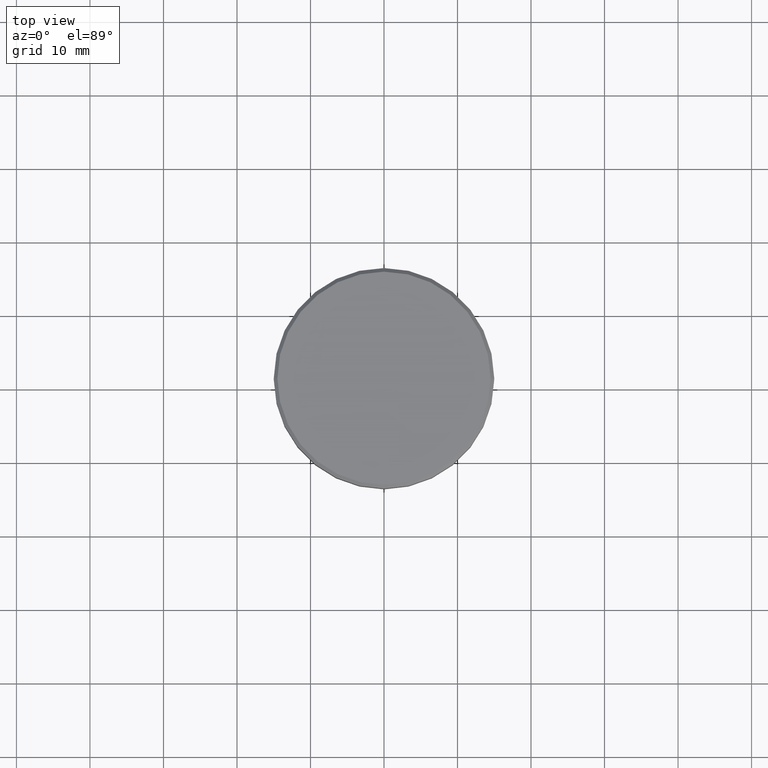
[diagram: clean part render]
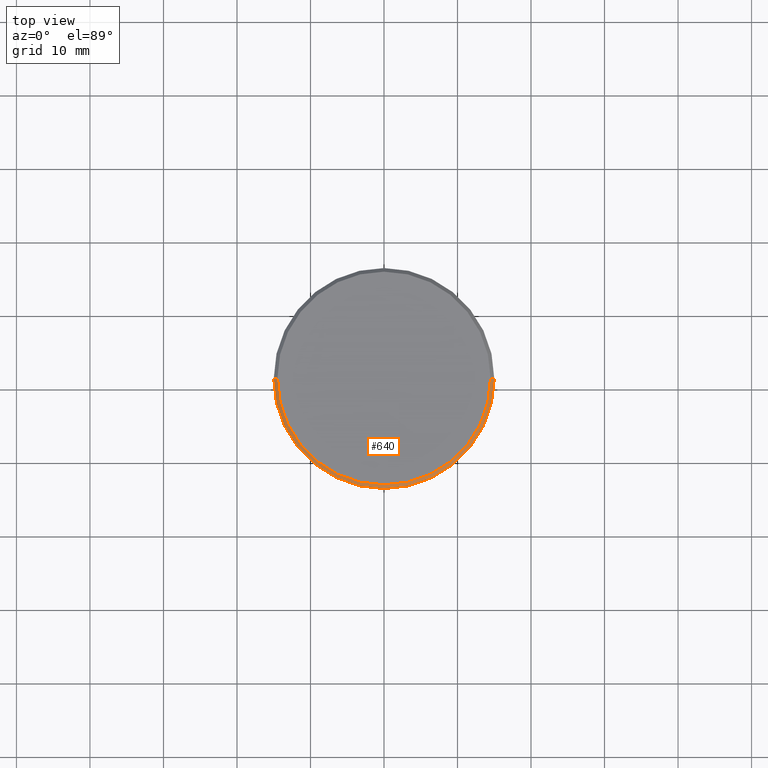
[diagram: same view with one face highlighted and labeled with its STEP entity id]
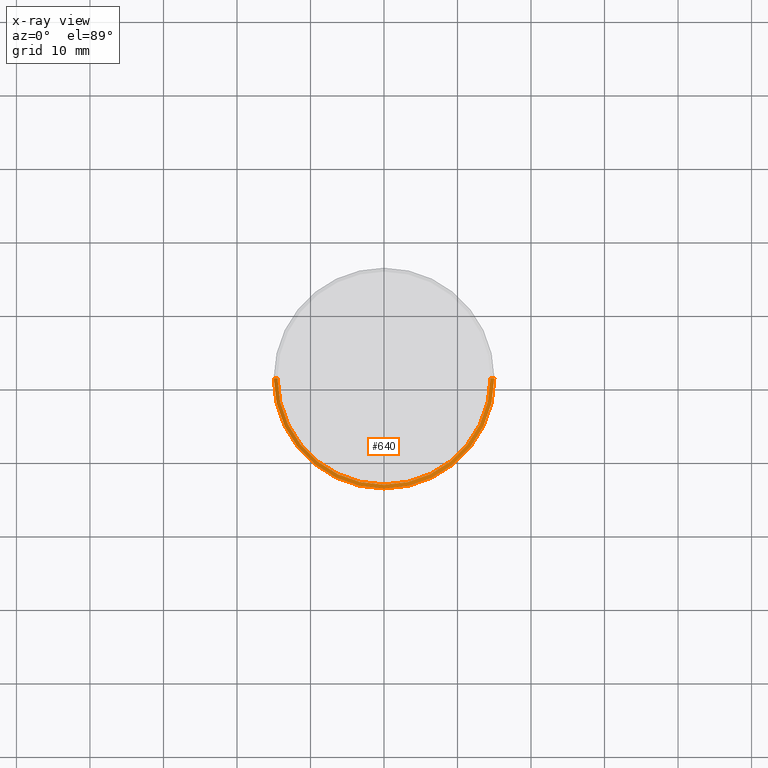
[diagram: x-ray of the same camera — body ghosted, the highlighted face saturated]
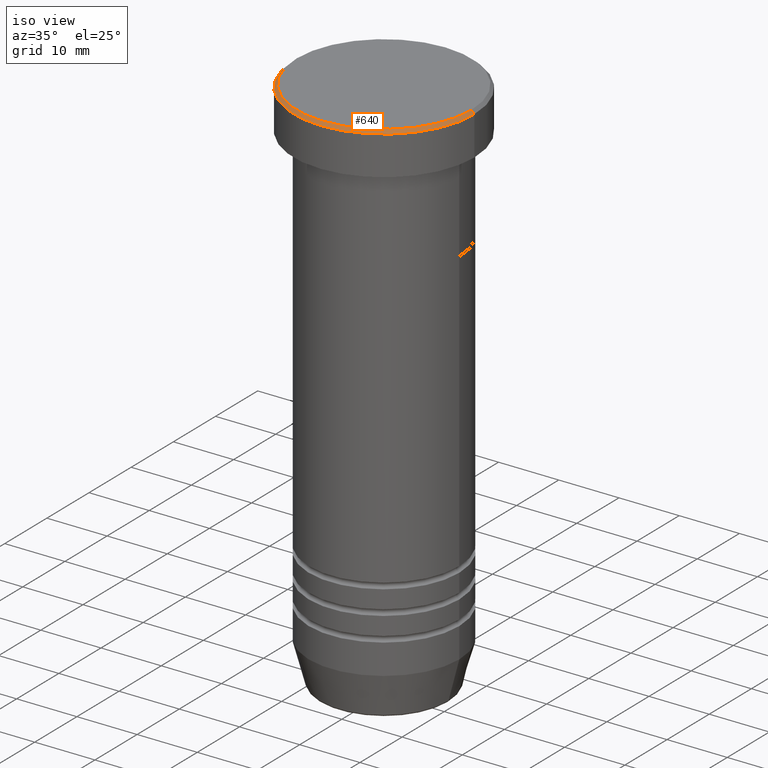
[diagram: same view with one face highlighted and labeled with its STEP entity id]
A machine part, top view. The second image highlights one B-rep face of the part: STEP entity #640.
The next image is the same camera in x-ray: the body ghosted, the highlighted face saturated — about 0% of this face is hidden behind the body in this view.
A second angle (iso view) of the same face is appended — the face is thin or edge-on in the first view.
In plain terms, the highlighted conical surface has half-angle 45 deg.
Its self-contained STEP definition (entity closure, byte-faithful):
#60 = LINE ( 'NONE', #958, #481 ) ;
#68 = CIRCLE ( 'NONE', #123, 15.00000000000000000 ) ;
#69 = VECTOR ( 'NONE', #759, 1000.000000000000000 ) ;
#71 = ORIENTED_EDGE ( 'NONE', *, *, #805, .F. ) ;
#95 = CARTESIAN_POINT ( 'NONE',  ( 14.50000000000000355, 1.806354028742346196E-15, 0.000000000000000000 ) ) ;
#123 = AXIS2_PLACEMENT_3D ( 'NONE', #418, #515, #431 ) ;
#164 = VERTEX_POINT ( 'NONE', #637 ) ;
#245 = ORIENTED_EDGE ( 'NONE', *, *, #791, .F. ) ;
#258 = CARTESIAN_POINT ( 'NONE',  ( -15.00000000000000000, 1.836970198721029589E-15, -0.4999999999999970024 ) ) ;
#272 = ORIENTED_EDGE ( 'NONE', *, *, #812, .T. ) ;
#288 = CONICAL_SURFACE ( 'NONE', #888, 14.50000000000000355, 0.7853981633974466137 ) ;
#334 = CARTESIAN_POINT ( 'NONE',  ( 0.000000000000000000, 0.000000000000000000, 0.000000000000000000 ) ) ;
#376 = EDGE_CURVE ( 'NONE', #607, #663, #512, .T. ) ;
#418 = CARTESIAN_POINT ( 'NONE',  ( 0.000000000000000000, 0.000000000000000000, -0.4999999999999970024 ) ) ;
#431 = DIRECTION ( 'NONE',  ( 1.000000000000000000, 0.000000000000000000, 0.000000000000000000 ) ) ;
#434 = ORIENTED_EDGE ( 'NONE', *, *, #376, .F. ) ;
#436 = LINE ( 'NONE', #904, #69 ) ;
#437 = DIRECTION ( 'NONE',  ( 0.000000000000000000, 0.000000000000000000, -1.000000000000000000 ) ) ;
#446 = EDGE_LOOP ( 'NONE', ( #245, #434, #272, #71 ) ) ;
#450 = DIRECTION ( 'NONE',  ( 1.000000000000000000, 0.000000000000000000, 0.000000000000000000 ) ) ;
#454 = CARTESIAN_POINT ( 'NONE',  ( 0.000000000000000000, 0.000000000000000000, 0.000000000000000000 ) ) ;
#481 = VECTOR ( 'NONE', #898, 1000.000000000000000 ) ;
#512 = CIRCLE ( 'NONE', #670, 14.50000000000000355 ) ;
#515 = DIRECTION ( 'NONE',  ( 0.000000000000000000, 0.000000000000000000, -1.000000000000000000 ) ) ;
#530 = DIRECTION ( 'NONE',  ( -0.000000000000000000, -0.000000000000000000, 1.000000000000000000 ) ) ;
#563 = VERTEX_POINT ( 'NONE', #258 ) ;
#607 = VERTEX_POINT ( 'NONE', #737 ) ;
#637 = CARTESIAN_POINT ( 'NONE',  ( 15.00000000000000000, 0.000000000000000000, -0.4999999999999970024 ) ) ;
#640 = ADVANCED_FACE ( 'NONE', ( #842 ), #288, .T. ) ;
#657 = DIRECTION ( 'NONE',  ( -1.000000000000000000, 0.000000000000000000, 0.000000000000000000 ) ) ;
#663 = VERTEX_POINT ( 'NONE', #95 ) ;
#670 = AXIS2_PLACEMENT_3D ( 'NONE', #454, #530, #450 ) ;
#737 = CARTESIAN_POINT ( 'NONE',  ( -14.50000000000000355, 0.000000000000000000, 0.000000000000000000 ) ) ;
#759 = DIRECTION ( 'NONE',  ( -0.7071067811865463515, 0.000000000000000000, -0.7071067811865487940 ) ) ;
#791 = EDGE_CURVE ( 'NONE', #663, #164, #60, .T. ) ;
#805 = EDGE_CURVE ( 'NONE', #164, #563, #68, .T. ) ;
#812 = EDGE_CURVE ( 'NONE', #607, #563, #436, .T. ) ;
#842 = FACE_OUTER_BOUND ( 'NONE', #446, .T. ) ;
#888 = AXIS2_PLACEMENT_3D ( 'NONE', #334, #437, #657 ) ;
#898 = DIRECTION ( 'NONE',  ( 0.7071067811865463515, 8.659560562354919300E-17, -0.7071067811865487940 ) ) ;
#904 = CARTESIAN_POINT ( 'NONE',  ( -14.50000000000000355, 0.000000000000000000, 0.000000000000000000 ) ) ;
#958 = CARTESIAN_POINT ( 'NONE',  ( 14.50000000000000355, 1.775737858763662804E-15, 0.000000000000000000 ) ) ;